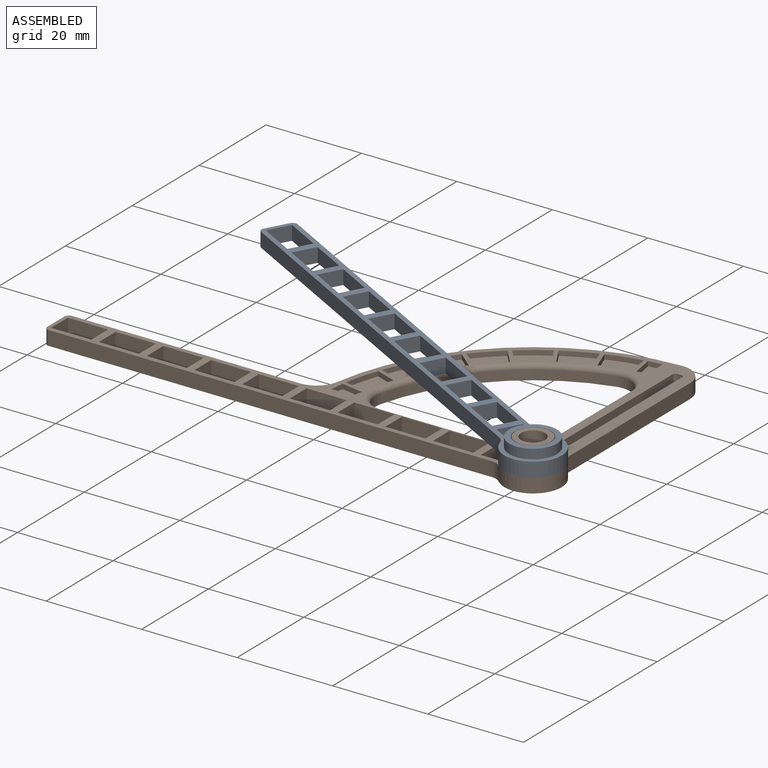
[diagram: assembled view]
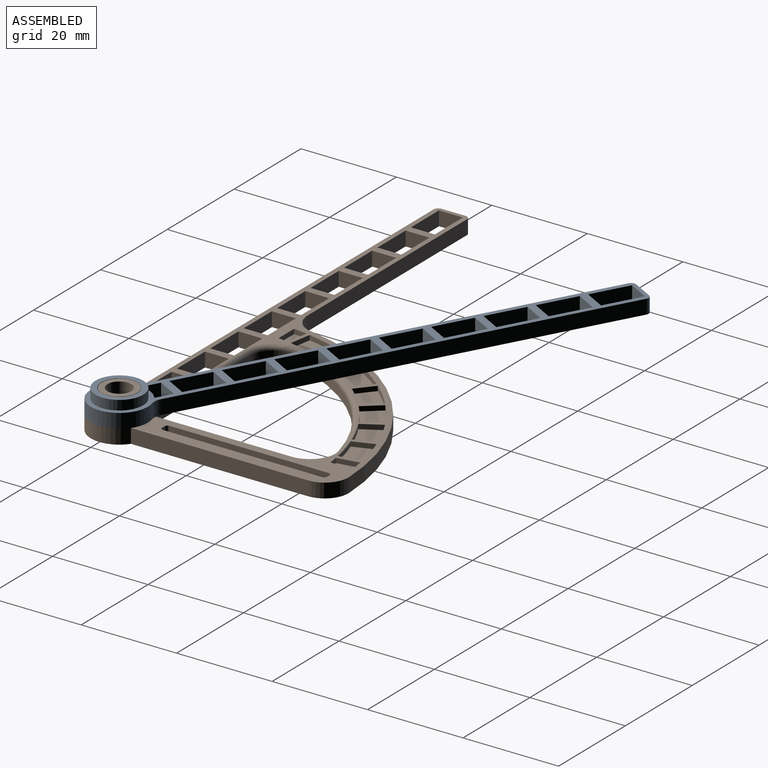
[diagram: assembled view, second angle]
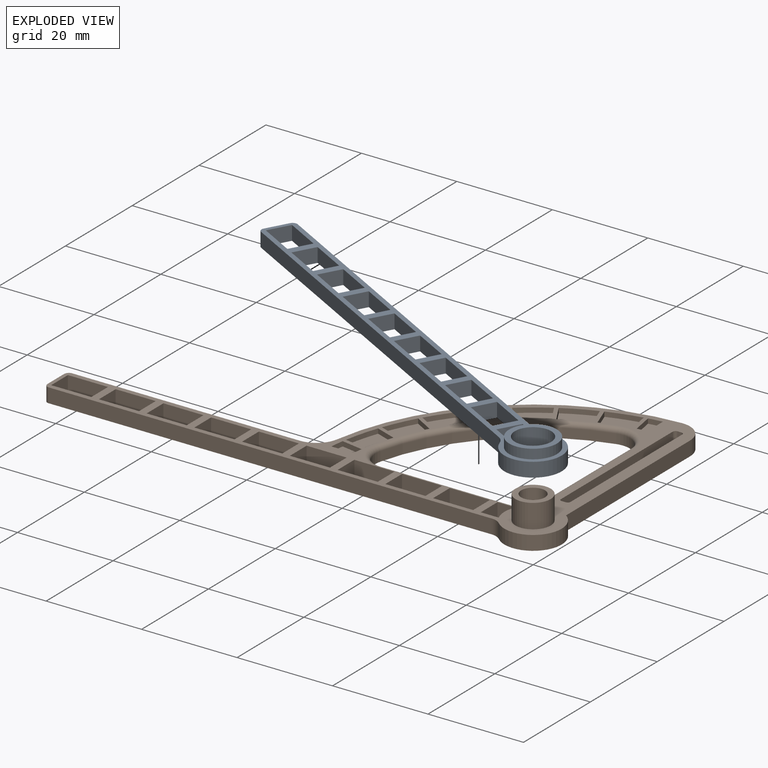
[diagram: exploded view]
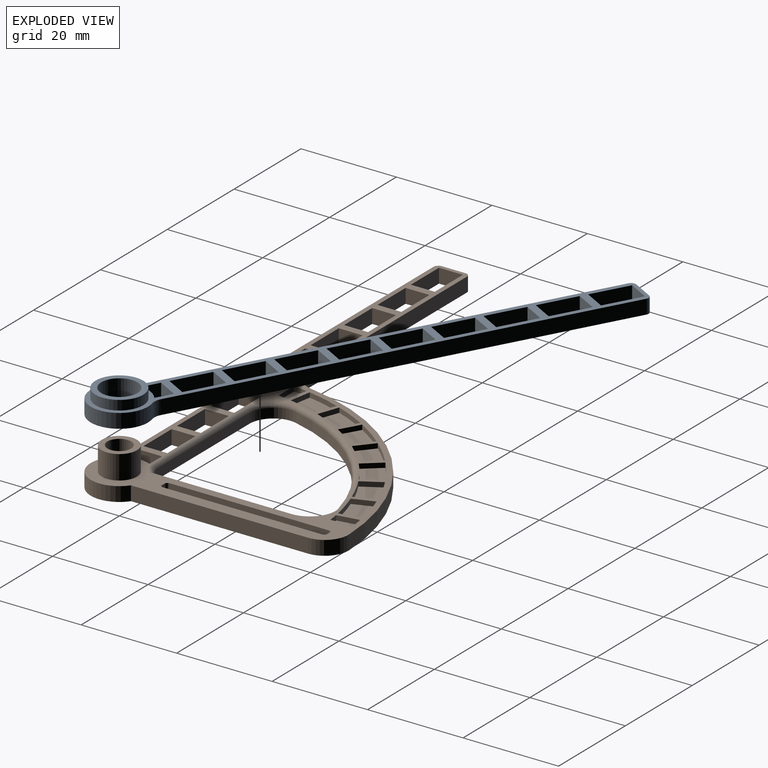
[diagram: exploded view, second angle]
ASSEMBLY  parts=2 mates=2
PART A: 53 faces, bbox 106x12x5 mm
  f0: cylinder r=3mm len=3mm, axis (0,0,-1), area 6.9mm2, adj f1,f46,f47,f48
  f1: cylinder r=6mm len=12mm, axis (0,0,-1), area 84mm2, adj f0,f2,f47,f48
  f2: cylinder r=3mm len=3mm, axis (0,0,-1), area 6.9mm2, adj f1,f3,f47,f48
  f3: plane 92.78x3mm, normal (0,1,0), area 278.3mm2, adj f2,f47,f48,f51
  f4: plane 5x3mm, normal (-1,0,0), area 15mm2, adj f47,f48,f51,f52
  f5: plane 8.4x3mm, normal (0,-1,0), area 25.2mm2, adj f6,f35,f47,f48
  f6: plane 5x3mm, normal (-1,0,0), area 15mm2, adj f5,f7,f47,f48
  f7: plane 8.4x3mm, normal (0,1,0), area 25.2mm2, adj f6,f35,f47,f48
  f8: plane 5x3mm, normal (-1,0,0), area 15mm2, adj f9,f36,f47,f48
  f9: plane 8.4x3mm, normal (0,1,0), area 25.2mm2, adj f8,f10,f47,f48
  f10: plane 5x3mm, normal (1,0,0), area 15mm2, adj f9,f36,f47,f48
  f11: plane 5x3mm, normal (-1,0,0), area 15mm2, adj f12,f37,f47,f48
  f12: plane 8.4x3mm, normal (0,1,0), area 25.2mm2, adj f11,f13,f47,f48
  f13: plane 5x3mm, normal (1,0,0), area 15mm2, adj f12,f37,f47,f48
  f14: plane 5x3mm, normal (-1,0,0), area 15mm2, adj f15,f38,f47,f48
  f15: plane 8.4x3mm, normal (0,1,0), area 25.2mm2, adj f14,f16,f47,f48
  f16: plane 5x3mm, normal (1,0,0), area 15mm2, adj f15,f38,f47,f48
  f17: plane 5x3mm, normal (-1,0,0), area 15mm2, adj f18,f39,f47,f48
  f18: plane 8.4x3mm, normal (0,1,0), area 25.2mm2, adj f17,f19,f47,f48
  f19: plane 5x3mm, normal (1,0,0), area 15mm2, adj f18,f39,f47,f48
  f20: plane 5x3mm, normal (-1,0,0), area 15mm2, adj f21,f40,f47,f48
  f21: plane 8.4x3mm, normal (0,1,0), area 25.2mm2, adj f20,f22,f47,f48
  f22: plane 5x3mm, normal (1,0,0), area 15mm2, adj f21,f40,f47,f48
  f23: plane 5x3mm, normal (-1,0,0), area 15mm2, adj f24,f41,f47,f48
  f24: plane 8.4x3mm, normal (0,1,0), area 25.2mm2, adj f23,f25,f47,f48
  f25: plane 5x3mm, normal (1,0,0), area 15mm2, adj f24,f41,f47,f48
  f26: plane 5x3mm, normal (-1,0,0), area 15mm2, adj f27,f42,f47,f48
  f27: plane 8.4x3mm, normal (0,1,0), area 25.2mm2, adj f26,f28,f47,f48
  f28: plane 5x3mm, normal (1,0,0), area 15mm2, adj f27,f42,f47,f48
  f29: plane 5x3mm, normal (-1,0,0), area 15mm2, adj f30,f43,f47,f48
  f30: plane 8.4x3mm, normal (0,1,0), area 25.2mm2, adj f29,f31,f47,f48
  f31: plane 5x3mm, normal (1,0,0), area 15mm2, adj f30,f43,f47,f48
  f32: plane 3.75x3mm, normal (0,-1,0), area 11.2mm2, adj f33,f44,f47,f48
  f33: cylinder r=6mm len=5mm, axis (0,0,-1), area 15.5mm2, adj f32,f34,f47,f48
  f34: plane 3.75x3mm, normal (0,1,0), area 11.2mm2, adj f33,f44,f47,f48
  f35: plane 5x3mm, normal (1,0,0), area 15mm2, adj f5,f7,f47,f48
  f36: plane 8.4x3mm, normal (0,-1,0), area 25.2mm2, adj f8,f10,f47,f48
  f37: plane 8.4x3mm, normal (0,-1,0), area 25.2mm2, adj f11,f13,f47,f48
  f38: plane 8.4x3mm, normal (0,-1,0), area 25.2mm2, adj f14,f16,f47,f48
  f39: plane 8.4x3mm, normal (0,-1,0), area 25.2mm2, adj f17,f19,f47,f48
  f40: plane 8.4x3mm, normal (0,-1,0), area 25.2mm2, adj f20,f22,f47,f48
  f41: plane 8.4x3mm, normal (0,-1,0), area 25.2mm2, adj f23,f25,f47,f48
  f42: plane 8.4x3mm, normal (0,-1,0), area 25.2mm2, adj f26,f28,f47,f48
  f43: plane 8.4x3mm, normal (0,-1,0), area 25.2mm2, adj f29,f31,f47,f48
  f44: plane 5x3mm, normal (1,0,0), area 15mm2, adj f32,f34,f47,f48
  f45: cylinder r=3.8mm len=7.6mm, axis (0,0,-1), area 119.4mm2, adj f48,f50
  f46: plane 92.78x3mm, normal (0,-1,0), area 278.3mm2, adj f0,f47,f48,f52
  f47: plane 106x12mm, normal (0,0,1), area 300.2mm2, adj f0,f1,f2,f3,f4,f5,f6,f7
  f48: plane 106x12mm, normal (0,0,-1), area 333.4mm2, adj f0,f1,f2,f3,f4,f5,f6,f7
  f49: cylinder r=5mm len=10mm, axis (0,0,-1), area 62.8mm2, adj f47,f50
  f50: plane 10x10mm, normal (0,0,1), area 33.2mm2, adj f45,f49
  f51: cylinder r=1mm len=3mm, axis (0,0,1), area 4.7mm2, adj f3,f4,f47,f48
  f52: cylinder r=1mm len=3mm, axis (0,0,-1), area 4.7mm2, adj f4,f46,f47,f48
PART B: 123 faces, bbox 106x53x8 mm
  f0: plane 29.08x2mm, normal (-1,0,0), area 58.2mm2, adj f4,f5,f110,f117
  f1: plane 27.73x2mm, normal (0,1,0), area 55.5mm2, adj f4,f6,f111,f120
  f2: cylinder r=40mm len=29.09mm, axis (0,0,-1), area 86.4mm2, adj f4,f110,f111,f121
  f3: plane 106x52.97mm, normal (0,0,1), area 634.3mm2, adj f7,f8,f9,f10,f11,f12,f13,f15
  f4: plane 106x52.97mm, normal (0,0,-1), area 1023.8mm2, adj f0,f1,f2,f5,f6,f7,f8,f9
  f5: cylinder r=6mm len=2mm, axis (0,0,-1), area 1.7mm2, adj f0,f4,f6,f116
  f6: cylinder r=3mm len=2.08mm, axis (0,0,-1), area 4.6mm2, adj f1,f4,f5,f118
  f7: cylinder r=47mm len=44.69mm, axis (0,0,-1), area 193.3mm2, adj f3,f4,f112,f113
  f8: plane 47.7x3mm, normal (0,1,0), area 143.1mm2, adj f3,f4,f112,f114
  f9: plane 5x3mm, normal (-1,0,0), area 15mm2, adj f3,f4,f114,f115
  f10: plane 92.78x3mm, normal (0,-1,0), area 278.3mm2, adj f3,f4,f11,f115
  f11: cylinder r=3mm len=3mm, axis (0,0,-1), area 6.9mm2, adj f3,f4,f10,f12
  f12: cylinder r=6mm len=10.87mm, axis (0,0,-1), area 59.1mm2, adj f3,f4,f11,f13
  f13: plane 37.1x3mm, normal (1,0,0), area 111.3mm2, adj f3,f4,f12,f113
  f14: cylinder r=2.5mm len=8mm, axis (0,0,-1), area 125.7mm2, adj f4,f16
  f15: cylinder r=3.7mm len=7.4mm, axis (0,0,-1), area 116.2mm2, adj f3,f16
  f16: plane 7.4x7.4mm, normal (0,0,1), area 23.4mm2, adj f14,f15
  f17: plane 5x3mm, normal (-1,0,0), area 15mm2, adj f3,f4,f18,f20
  f18: plane 8.4x3mm, normal (0,-1,0), area 25.2mm2, adj f3,f4,f17,f19
  f19: plane 5x3mm, normal (1,0,0), area 15mm2, adj f3,f4,f18,f20
  f20: plane 8.4x3mm, normal (0,1,0), area 25.2mm2, adj f3,f4,f17,f19
  f21: plane 8.4x3mm, normal (0,1,0), area 25.2mm2, adj f3,f4,f22,f24
  f22: plane 5x3mm, normal (-1,0,0), area 15mm2, adj f3,f4,f21,f23
  f23: plane 8.4x3mm, normal (0,-1,0), area 25.2mm2, adj f3,f4,f22,f24
  f24: plane 5x3mm, normal (1,0,0), area 15mm2, adj f3,f4,f21,f23
  f25: plane 8.4x3mm, normal (0,1,0), area 25.2mm2, adj f3,f4,f26,f28
  f26: plane 5x3mm, normal (-1,0,0), area 15mm2, adj f3,f4,f25,f27
  f27: plane 8.4x3mm, normal (0,-1,0), area 25.2mm2, adj f3,f4,f26,f28
  f28: plane 5x3mm, normal (1,0,0), area 15mm2, adj f3,f4,f25,f27
  f29: plane 8.4x3mm, normal (0,1,0), area 25.2mm2, adj f3,f4,f30,f32
  f30: plane 5x3mm, normal (-1,0,0), area 15mm2, adj f3,f4,f29,f31
  f31: plane 8.4x3mm, normal (0,-1,0), area 25.2mm2, adj f3,f4,f30,f32
  f32: plane 5x3mm, normal (1,0,0), area 15mm2, adj f3,f4,f29,f31
  f33: plane 8.4x3mm, normal (0,1,0), area 25.2mm2, adj f3,f4,f34,f36
  f34: plane 5x3mm, normal (-1,0,0), area 15mm2, adj f3,f4,f33,f35
  f35: plane 8.4x3mm, normal (0,-1,0), area 25.2mm2, adj f3,f4,f34,f36
  f36: plane 5x3mm, normal (1,0,0), area 15mm2, adj f3,f4,f33,f35
  f37: plane 8.4x3mm, normal (0,1,0), area 25.2mm2, adj f3,f4,f38,f40
  f38: plane 5x3mm, normal (-1,0,0), area 15mm2, adj f3,f4,f37,f39
  f39: plane 8.4x3mm, normal (0,-1,0), area 25.2mm2, adj f3,f4,f38,f40
  f40: plane 5x3mm, normal (1,0,0), area 15mm2, adj f3,f4,f37,f39
  f41: plane 8.4x3mm, normal (0,1,0), area 25.2mm2, adj f3,f4,f42,f44
  f42: plane 5x3mm, normal (-1,0,0), area 15mm2, adj f3,f4,f41,f43
  f43: plane 8.4x3mm, normal (0,-1,0), area 25.2mm2, adj f3,f4,f42,f44,f120
  f44: plane 5x3mm, normal (1,0,0), area 15mm2, adj f3,f4,f41,f43
  f45: plane 8.4x3mm, normal (0,1,0), area 25.2mm2, adj f3,f4,f46,f48
  f46: plane 5x3mm, normal (-1,0,0), area 15mm2, adj f3,f4,f45,f47
  f47: plane 8.4x3mm, normal (0,-1,0), area 25.2mm2, adj f4,f46,f48,f120
  f48: plane 5x3mm, normal (1,0,0), area 15mm2, adj f3,f4,f45,f47
  f49: plane 8.4x3mm, normal (0,1,0), area 25.2mm2, adj f3,f4,f50,f52
  f50: plane 5x3mm, normal (-1,0,0), area 15mm2, adj f3,f4,f49,f51
  f51: plane 8.4x3mm, normal (0,-1,0), area 25.2mm2, adj f4,f50,f52,f120
  f52: plane 5x3mm, normal (1,0,0), area 15mm2, adj f3,f4,f49,f51
  f53: cylinder r=6mm len=5mm, axis (0,0,-1), area 15.5mm2, adj f3,f4,f54,f56
  f54: plane 3.75x3mm, normal (0,-1,0), area 11.2mm2, adj f3,f4,f53,f55,f120
  f55: plane 5x3mm, normal (1,0,0), area 15mm2, adj f3,f4,f54,f56
  f56: plane 3.75x3mm, normal (0,1,0), area 11.2mm2, adj f3,f4,f53,f55
  f57: cylinder r=41.2mm len=6.17mm, axis (0,0,-1), area 6.4mm2, adj f3,f58,f92,f93
  f58: plane 4.53x1mm, normal (0.17,0.98,0), area 4.6mm2, adj f3,f57,f59,f93
  f59: cylinder r=45.8mm len=6.94mm, axis (0,0,-1), area 7.2mm2, adj f3,f58,f92,f93
  f60: plane 4.63x1mm, normal (-1,0,0), area 4.6mm2, adj f3,f61,f84,f101
  f61: cylinder r=41.2mm len=2.06mm, axis (0,0,-1), area 2.1mm2, adj f3,f60,f62,f101
  f62: plane 4.53x1mm, normal (0.98,0.17,0), area 4.6mm2, adj f3,f61,f84,f101
  f63: cylinder r=41.2mm len=6.17mm, axis (0,0,-1), area 6.4mm2, adj f3,f64,f85,f100
  f64: plane 4.32x1.57mm, normal (0.94,0.34,0), area 4.6mm2, adj f3,f63,f65,f100
  f65: cylinder r=45.8mm len=6.94mm, axis (0,0,-1), area 7.2mm2, adj f3,f64,f85,f100
  f66: cylinder r=41.2mm len=5.79mm, axis (0,0,-1), area 6.4mm2, adj f3,f67,f86,f99
  f67: plane 3.98x2.3mm, normal (0.87,0.5,0), area 4.6mm2, adj f3,f66,f68,f99
  f68: cylinder r=45.8mm len=6.51mm, axis (0,0,-1), area 7.2mm2, adj f3,f67,f86,f99
  f69: cylinder r=41.2mm len=5.23mm, axis (0,0,-1), area 6.4mm2, adj f3,f70,f87,f98
  f70: plane 3.52x2.96mm, normal (0.77,0.64,0), area 4.6mm2, adj f3,f69,f71,f98
  f71: cylinder r=45.8mm len=5.89mm, axis (0,0,-1), area 7.2mm2, adj f3,f70,f87,f98
  f72: cylinder r=41.2mm len=4.51mm, axis (0,0,-1), area 6.4mm2, adj f3,f73,f88,f97
  f73: plane 3.52x2.96mm, normal (0.64,0.77,0), area 4.6mm2, adj f3,f72,f74,f97
  f74: cylinder r=45.8mm len=5.08mm, axis (0,0,-1), area 7.2mm2, adj f3,f73,f88,f97
  f75: cylinder r=41.2mm len=5.23mm, axis (0,0,-1), area 6.4mm2, adj f3,f76,f89,f96
  f76: plane 3.98x2.3mm, normal (0.5,0.87,0), area 4.6mm2, adj f3,f75,f77,f96
  f77: cylinder r=45.8mm len=5.89mm, axis (0,0,-1), area 7.2mm2, adj f3,f76,f89,f96
  f78: cylinder r=41.2mm len=5.79mm, axis (0,0,-1), area 6.4mm2, adj f3,f79,f90,f95
  f79: plane 4.32x1.57mm, normal (0.34,0.94,0), area 4.6mm2, adj f3,f78,f80,f95
  f80: cylinder r=45.8mm len=6.51mm, axis (0,0,-1), area 7.2mm2, adj f3,f79,f90,f95
  f81: plane 4.63x1mm, normal (0,1,0), area 4.6mm2, adj f3,f82,f91,f94
  f82: cylinder r=45.8mm len=2.86mm, axis (0,0,-1), area 2.9mm2, adj f3,f81,f83,f94
  f83: plane 4.53x1mm, normal (-0.17,-0.98,0), area 4.6mm2, adj f3,f82,f91,f94
  f84: cylinder r=45.8mm len=2.86mm, axis (0,0,-1), area 2.9mm2, adj f3,f60,f62,f101
  f85: plane 4.53x1mm, normal (-0.98,-0.17,0), area 4.6mm2, adj f3,f63,f65,f100
  f86: plane 4.32x1.57mm, normal (-0.94,-0.34,0), area 4.6mm2, adj f3,f66,f68,f99
  f87: plane 3.98x2.3mm, normal (-0.87,-0.5,0), area 4.6mm2, adj f3,f69,f71,f98
  f88: plane 3.52x2.96mm, normal (-0.77,-0.64,0), area 4.6mm2, adj f3,f72,f74,f97
  f89: plane 3.52x2.96mm, normal (-0.64,-0.77,0), area 4.6mm2, adj f3,f75,f77,f96
  f90: plane 3.98x2.3mm, normal (-0.5,-0.87,0), area 4.6mm2, adj f3,f78,f80,f95
  f91: cylinder r=41.2mm len=2.06mm, axis (0,0,-1), area 2.1mm2, adj f3,f81,f83,f94
  f92: plane 4.32x1.57mm, normal (-0.34,-0.94,0), area 4.6mm2, adj f3,f57,f59,f93
  f93: plane 7.74x6.18mm, normal (0,0,1), area 31.2mm2, adj f57,f58,f59,f92
  f94: plane 4.92x2.86mm, normal (0,0,1), area 11.4mm2, adj f81,f82,f83,f91
  f95: plane 8.09x7.02mm, normal (0,0,1), area 31.2mm2, adj f78,f79,f80,f90
  f96: plane 8.19x7.65mm, normal (0,0,1), area 31.2mm2, adj f75,f76,f77,f89
  f97: plane 8.04x8.04mm, normal (0,0,1), area 31.2mm2, adj f72,f73,f74,f88
  f98: plane 8.19x7.65mm, normal (0,0,1), area 31.2mm2, adj f69,f70,f71,f87
  f99: plane 8.09x7.02mm, normal (0,0,1), area 31.2mm2, adj f66,f67,f68,f86
  f100: plane 7.74x6.18mm, normal (0,0,1), area 31.2mm2, adj f63,f64,f65,f85
  f101: plane 4.92x2.86mm, normal (0,0,1), area 11.4mm2, adj f60,f61,f62,f84
  f102: cylinder r=0.6mm len=3mm, axis (0,0,1), area 2.8mm2, adj f3,f4,f103,f108
  f103: plane 33.4x3mm, normal (1,0,0), area 100.2mm2, adj f3,f4,f102,f104
  f104: cylinder r=0.6mm len=3mm, axis (0,0,1), area 2.8mm2, adj f3,f4,f103,f105
  f105: plane 3x0.8mm, normal (0,1,0), area 2.4mm2, adj f3,f4,f104,f106
  f106: cylinder r=0.6mm len=3mm, axis (0,0,1), area 2.8mm2, adj f3,f4,f105,f107
  f107: plane 33.4x3mm, normal (-1,0,0), area 100.2mm2, adj f3,f4,f106,f109
  f108: plane 3x0.8mm, normal (0,-1,0), area 2.4mm2, adj f3,f4,f102,f109
  f109: cylinder r=0.6mm len=3mm, axis (0,0,1), area 2.8mm2, adj f3,f4,f107,f108
  f110: cylinder r=5mm len=6.21mm, axis (0,0,-1), area 18.2mm2, adj f0,f2,f4,f119
  f111: cylinder r=5mm len=6.21mm, axis (0,0,-1), area 18.2mm2, adj f1,f2,f4,f122
  f112: cylinder r=5mm len=4.93mm, axis (0,0,-1), area 21.1mm2, adj f3,f4,f7,f8
  f113: cylinder r=5mm len=5.18mm, axis (0,0,-1), area 24.1mm2, adj f3,f4,f7,f13
  f114: cylinder r=1mm len=3mm, axis (0,0,1), area 4.7mm2, adj f3,f4,f8,f9
  f115: cylinder r=1mm len=3mm, axis (0,0,-1), area 4.7mm2, adj f3,f4,f9,f10
  f116: torus R=5mm, axis (0,0,1), area 1.5mm2, adj f3,f5,f117,f118
  f117: cylinder r=1mm len=29.62mm, axis (0,1,0), area 46mm2, adj f0,f3,f116,f119
  f118: torus R=4mm, axis (0,0,1), area 4mm2, adj f3,f6,f116,f120
  f119: torus R=6mm, axis (0,0,1), area 15.3mm2, adj f3,f110,f117,f121
  f120: cylinder r=1mm len=27.73mm, axis (1,0,0), area 43.6mm2, adj f1,f3,f43,f47,f51,f54,f118,f122
  f121: torus R=41mm, axis (0,0,1), area 68.5mm2, adj f2,f3,f119,f122
  f122: torus R=6mm, axis (0,0,1), area 15.3mm2, adj f3,f111,f120,f121
PLACE A rot(axis=(0,0,-1),28.9deg) t=(0,0,3)mm
PLACE B at identity
MATE cylindrical A.f45 <-> B.f15  axis (0,0,-1) through (0,0,8)mm
MATE planar B.f3 <-> A.f2  axis (0,0,1) through (-27.55,14.03,3)mm
